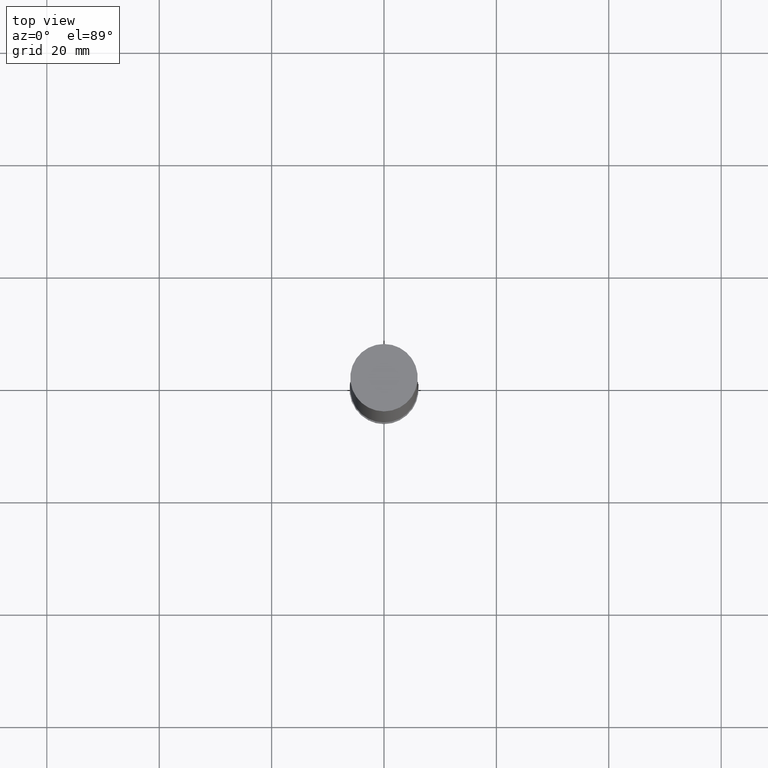
[diagram: clean part render]
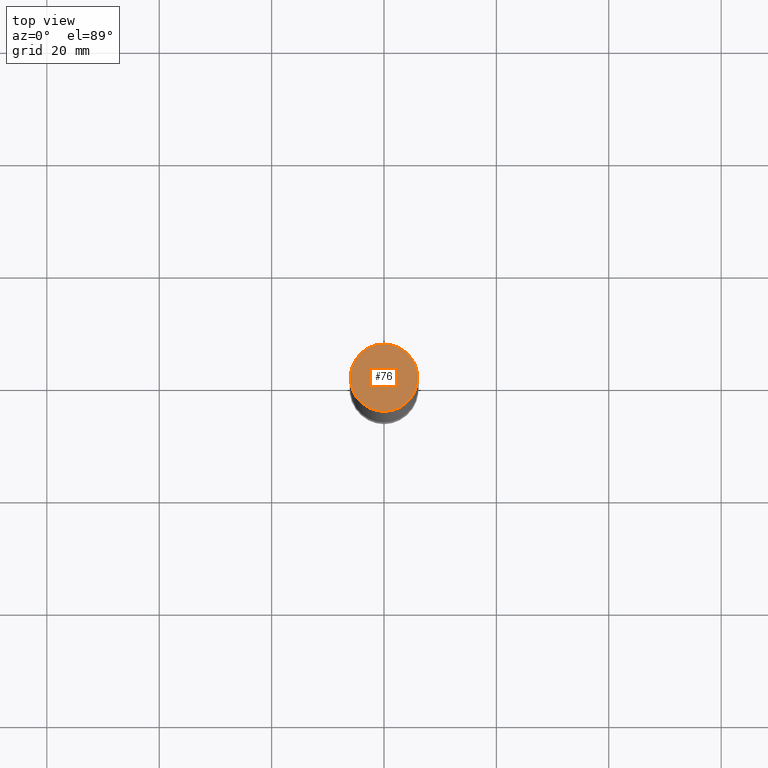
[diagram: same view with one face highlighted and labeled with its STEP entity id]
A machine part, top view. The second image highlights one B-rep face of the part: STEP entity #76.
In plain terms, the highlighted planar face has unit normal (-0, -0, 1).
Its self-contained STEP definition (entity closure, byte-faithful):
#76=ADVANCED_FACE('',(#87),#88,.T.);
#87=FACE_OUTER_BOUND('',#112,.T.);
#88=PLANE('',#113);
#112=EDGE_LOOP('',(#139));
#113=AXIS2_PLACEMENT_3D('',#140,#141,#142);
#139=ORIENTED_EDGE('',*,*,#179,.F.);
#140=CARTESIAN_POINT('',(-7.9602041944578E-015,2.99999999999998,130.0));
#141=DIRECTION('',(-6.12323399573677E-017,-1.22464679914735E-016,1.0));
#142=DIRECTION('',(1.23259516440783E-032,-1.0,-1.22464679914735E-016));
#179=EDGE_CURVE('',#188,#188,#189,.T.);
#188=VERTEX_POINT('',#204);
#189=CIRCLE('',#205,6.0);
#204=CARTESIAN_POINT('',(-7.9602041944578E-015,5.99999999999998,130.0));
#205=AXIS2_PLACEMENT_3D('',#221,#222,#223);
#221=CARTESIAN_POINT('',(-7.9602041944578E-015,-1.59204083889156E-014,130.0));
#222=DIRECTION('',(6.12323399573677E-017,1.22464679914735E-016,-1.0));
#223=DIRECTION('',(-1.23259516440783E-032,1.0,1.22464679914735E-016));